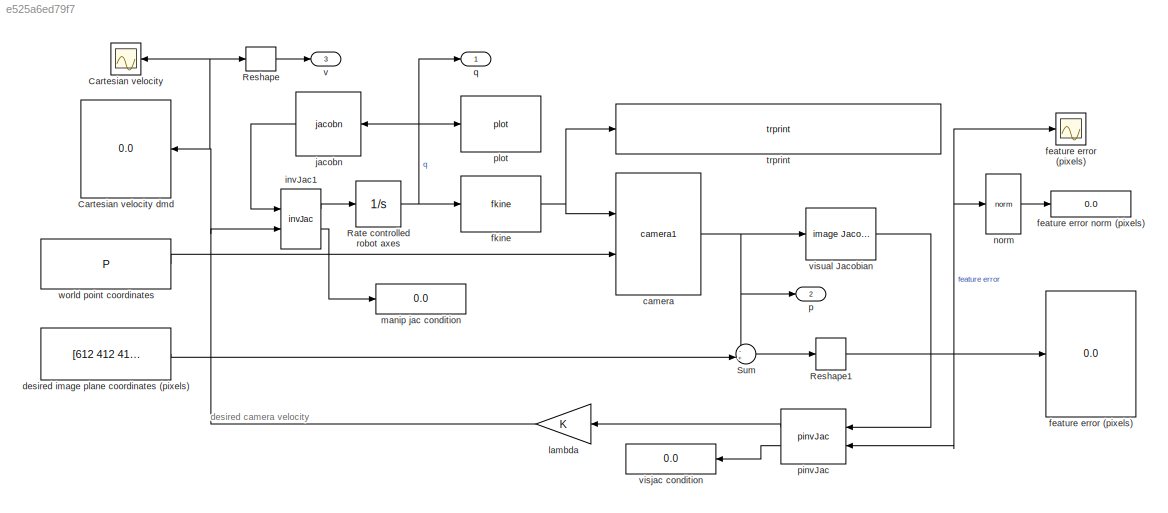
MODEL slx_e525a6ed79f7
KIND model
CONFIG AbsTol = auto
CONFIG FixedStep = auto
CONFIG InitFcn = mdl_puma560\ncamera = CentralCamera('default');\nP = mkgrid(2, 0.5, troty(pi/2)*transl(0,0,2.5));\nq0 = [0 pi/4 pi 0 pi/4 -pi/4]';
CONFIG MaxStep = auto
CONFIG MinStep = auto
CONFIG RelTol = 1e-3
CONFIG SampleTimeConstraint = Unconstrained
CONFIG Solver = ode45
CONFIG SolverMode = Auto
CONFIG SolverName = ode45
CONFIG StartTime = 0.0
CONFIG StopTime = 20.0
BLOCK [Scope] Cartesian velocity
  Ports = [1]
  ScopeSpecificationString = Simulink.scopes.TimeScopeBlockCfg('CurrentConfiguration', extmgr.ConfigurationSet(extmgr.Configuration('Core','General UI',true),extmgr.Configuration('Core','Source UI',true),extmgr.Configuration('Sources','WiredSimulink',true,'DataLoggingSaveFormat','StructureWithTime','DataLoggingLimitDataPoints',true,'DataLoggingDecimation','1','DataLoggingDecimateData',true,'DataLoggingVariableName','ScopeData...<+1790ch>
BLOCK [Display] Cartesian velocity dmd
  Decimation = 1
  Format = bank
  Ports = [1]
BLOCK [Integrator] Rate controlled robot axes
  InitialCondition = q0
  Ports = [1, 1]
BLOCK [Reshape] Reshape
  OutputDimensions = 6
  Ports = [1, 1]
BLOCK [Reshape] Reshape1
  OutputDimensions = 6
  Ports = [1, 1]
BLOCK [Sum] Sum
  IconShape = round
  Inputs = -+|
  Ports = [2, 1]
BLOCK [Reference] camera  REF=roblocks/Vision/camera1  (lib defined in mdl_2a292b13c81b, mdl_69400f8cfe22, +12 more)
  Ports = [2, 1]
  SourceBlock = roblocks/Vision/camera1
BLOCK [Constant] desired image plane coordinates (pixels)
  Value = [612 412 412 612; 412 412 612 612]
  VectorParams1D = off
BLOCK [Display] feature error (pixels)
  Decimation = 1
  Format = bank
  Ports = [1]
BLOCK [Scope] feature error (pixels) 
  Ports = [1]
  ScopeSpecificationString = Simulink.scopes.TimeScopeBlockCfg('CurrentConfiguration', extmgr.ConfigurationSet(extmgr.Configuration('Core','General UI',true),extmgr.Configuration('Core','Source UI',true),extmgr.Configuration('Sources','WiredSimulink',true,'DataLoggingSaveFormat','StructureWithTime','DataLoggingLimitDataPoints',true,'DataLoggingDecimation','1','DataLoggingDecimateData',true),extmgr.Configuration('Visuals','Tim...<+1803ch>
BLOCK [Display] feature error norm (pixels)
  Decimation = 1
  Ports = [1]
BLOCK [Reference] fkine  REF=roblocks/Arm/fkine  (lib defined in mdl_2a292b13c81b, mdl_69400f8cfe22, +12 more)
  Ports = [1, 1]
  SourceBlock = roblocks/Arm/fkine
BLOCK [Reference] invJac1  REF=roblocks/Toolbox/invJac  (lib defined in mdl_2a292b13c81b, mdl_69400f8cfe22, +12 more)
  Ports = [2, 2]
  SourceBlock = roblocks/Toolbox/invJac
BLOCK [Reference] jacobn  REF=roblocks/Arm/jacobn  (lib defined in mdl_2a292b13c81b, mdl_69400f8cfe22, +12 more)
  Ports = [1, 1]
  SourceBlock = roblocks/Arm/jacobn
BLOCK [Gain] lambda
BLOCK [Display] manip jac condition
  Decimation = 1
  Ports = [1]
BLOCK [Reference] norm  REF=roblocks/Toolbox/norm  (lib defined in mdl_2a292b13c81b, mdl_69400f8cfe22, +12 more)
  Ports = [1, 1]
  SourceBlock = roblocks/Toolbox/norm
BLOCK [Outport] p
  IconDisplay = Port number
  Port = 2
BLOCK [Reference] pinvJac  REF=roblocks/Toolbox/pinvJac  (lib defined in mdl_2a292b13c81b, mdl_69400f8cfe22, +12 more)
  Ports = [2, 2]
  SourceBlock = roblocks/Toolbox/pinvJac
BLOCK [Reference] plot  REF=roblocks/Arm/plot  (lib defined in mdl_2a292b13c81b, mdl_69400f8cfe22, +12 more)
  Ports = [1]
  SourceBlock = roblocks/Arm/plot
BLOCK [Outport] q
  IconDisplay = Port number
BLOCK [Reference] trprint  REF=roblocks/Toolbox/trprint  (lib defined in mdl_2a292b13c81b, mdl_69400f8cfe22, +12 more)
  Ports = [1]
  SourceBlock = roblocks/Toolbox/trprint
BLOCK [Outport] v
  IconDisplay = Port number
  Port = 3
BLOCK [Display] visjac condition
  Decimation = 1
  Ports = [1]
BLOCK [Reference] visual Jacobian  REF=roblocks/Vision/image  (lib defined in mdl_2a292b13c81b, mdl_69400f8cfe22, +12 more)
Jacobian
  Ports = [1, 1]
  SourceBlock = roblocks/Vision/image\nJacobian
BLOCK [Constant] world point coordinates
  Value = P
  VectorParams1D = off
ANNOTATION (root): desired camera velocity
NET Rate controlled robot axes:1 -> fkine:1, jacobn:1, plot:1, q:1
NET Reshape1:1 -> feature error (pixels) :1, feature error (pixels):1, norm:1, pinvJac:2
LINE Reshape:1 -> v:1
LINE Sum:1 -> Reshape1:1
NET camera:1 -> Sum:1, p:1, visual Jacobian:1
LINE desired image plane coordinates (pixels):1 -> Sum:2
NET fkine:1 -> camera:1, trprint:1
LINE invJac1:1 -> Rate controlled robot axes:1
LINE invJac1:2 -> manip jac condition:1
LINE jacobn:1 -> invJac1:1
NET lambda:1 -> Cartesian velocity dmd:1, Cartesian velocity:1, Reshape:1, invJac1:2
LINE norm:1 -> feature error norm (pixels):1
LINE pinvJac:1 -> lambda:1
LINE pinvJac:2 -> visjac condition:1
LINE visual Jacobian:1 -> pinvJac:1
LINE world point coordinates:1 -> camera:2
note: NET lines group one-source signal fan-out (src -> all destinations, sorted); 1:1 wires keep LINE
